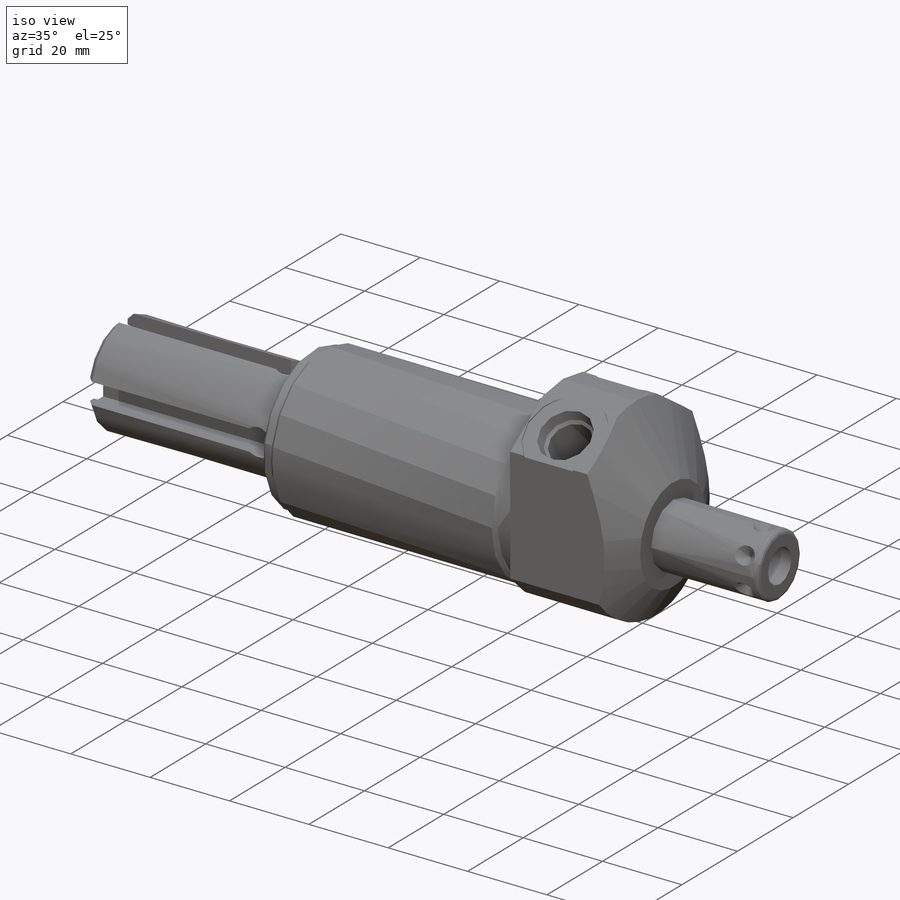
[diagram: iso view]
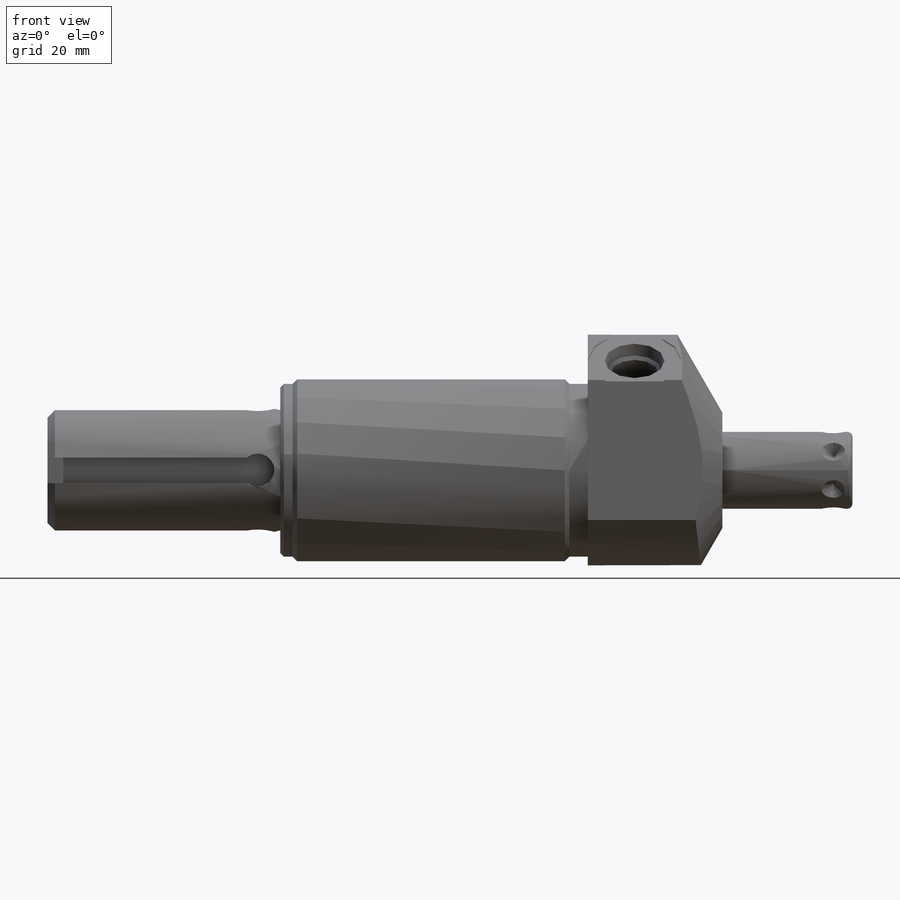
[diagram: front view]
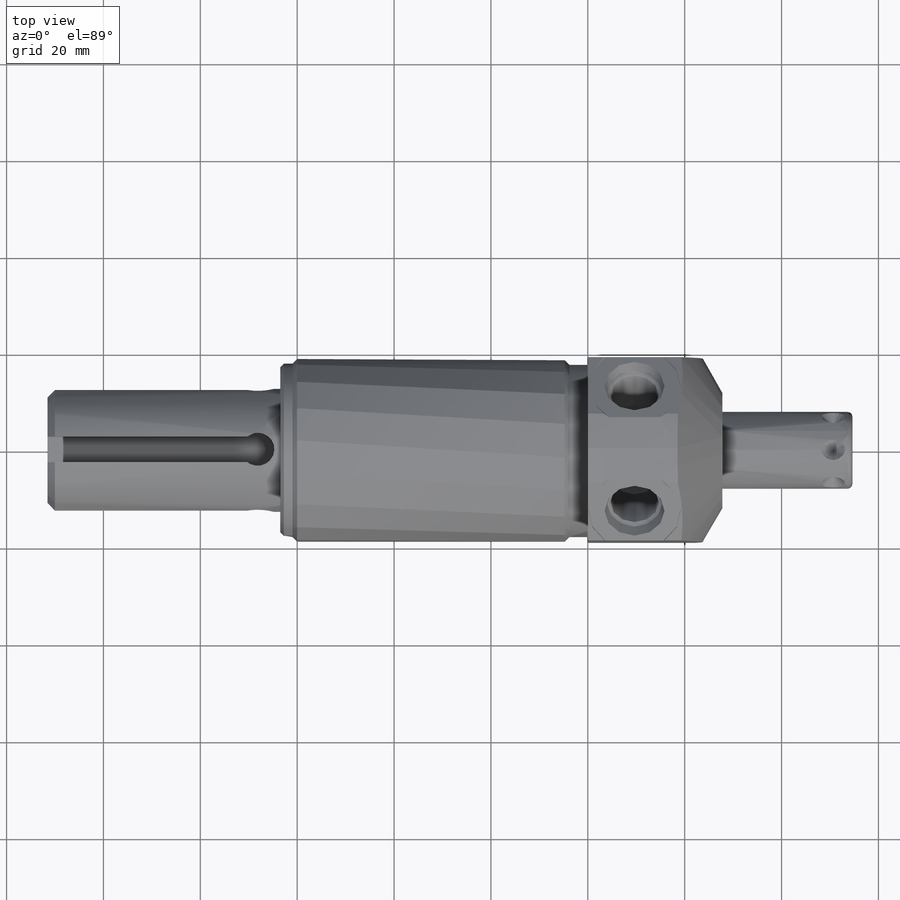
[diagram: top view]
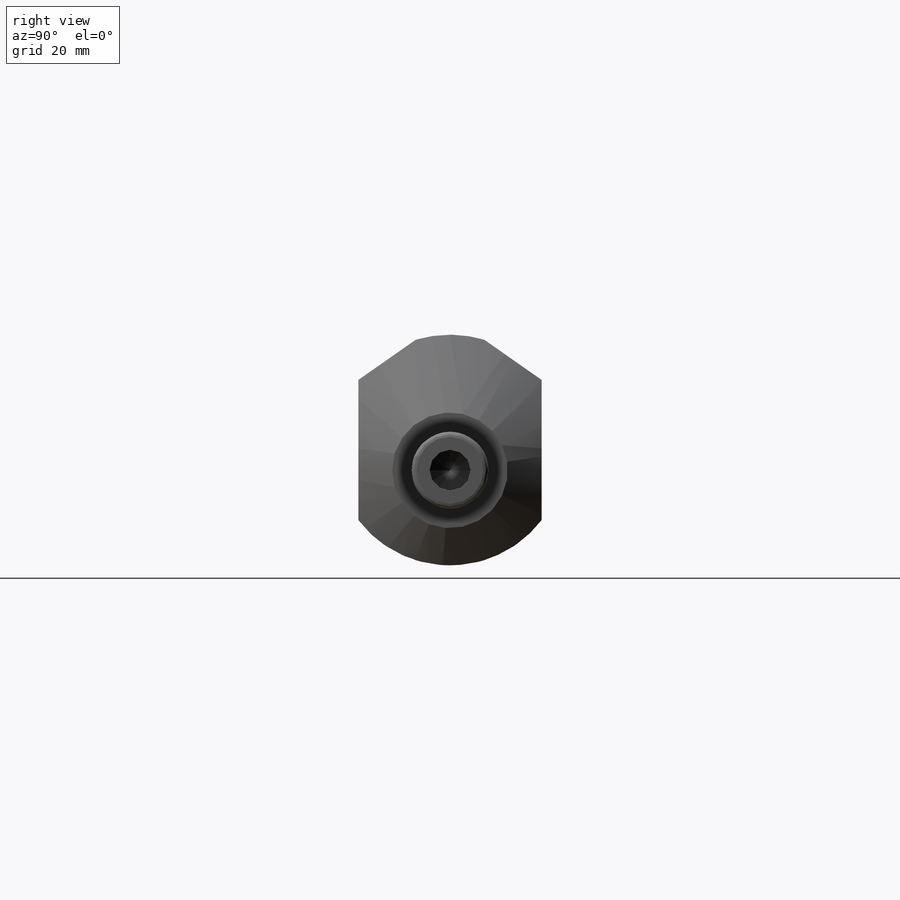
[diagram: right view]
SOLIDWORKS PART (.sldprt)
format: sldprt  version: not decoded by parser v0  size: 794,112 bytes
history: native  units: mm
features: sketch x18, plane x12, cut_extrude x8, cut_revolve x7, extrude x2, chamfer x2, pattern_circular x2, material x1, revolve x1 (+13 scaffold rows collapsed)
feature tree (66):
  scaffold x13  (default folders/planes/origin — collapsed)
  material  "Alloy Steel"
  plane  "Plane1"
  sketch  "Sketch1"  dims[D1=47.625mm]
  extrude  "Extrude1"  Depth=27.7876mm
  plane  "Plane2"
  sketch  "Sketch2"  dims[D2=37.719mm D1=4.191mm]
  cut_extrude  "Cut-Extrude1"  [1 undecoded]
  plane  "Plane4"
  sketch  "Sketch4"  dims[c1.D4=57.15mm c1.D1=37.846mm c1.D2=~27.715897mm c1.D3=18.923mm c2.D3=55.0deg]
  cut_extrude  "Cut-Extrude3"  [1 undecoded]
  plane  "Plane6"
  sketch  "Sketch6"  dims[c1.D1=23.876mm c1.D2=39.878mm c2.D2=30.0deg c2.D3=39.878mm]
  cut_revolve  "Cut-Revolve2"  Angle=360deg
  plane  "Plane7"
  sketch  "S2D0002"  dims[D1=13.462mm]
  cut_revolve  "Cut-Revolve3"  Angle=360deg
  plane  "Plane8"
  sketch  "Sketch8"  dims[D1=13.462mm]
  cut_revolve  "Cut-Revolve4"  Angle=360deg
  sketch  "Sketch18"  dims[D1=19.05mm]
  cut_extrude  "Cut-Extrude4"  Depth=0.254mm
  sketch  "Sketch19"  dims[D1=19.05mm]
  cut_extrude  "Cut-Extrude5"  Depth=0.254mm
  plane  "Plane10"
  sketch  "Sketch10"  dims[c1.D1=35.814mm c1.D2=3.81mm c1.D3=0.9525mm c2.D3=45.0deg]
  cut_revolve  "Cut-Revolve6"  Angle=360deg
  plane  "Plane12"
  sketch  "Sketch12"  dims[c1.D1=35.814mm c1.D2=2.54mm c1.D3=0.9525mm c2.D3=45.0deg]
  cut_revolve  "Cut-Revolve8"  Angle=360deg
  chamfer  "Chamfer1"  Distance=0.762mm Angle=45deg
  plane  "Plane13"
  sketch  "Sketch13"  dims[D2=1.016mm D1=54.6354mm D3=15.875mm]
  revolve  "Revolve1"  Angle=360deg
  plane  "Plane14"
  sketch  "S2D0001"  dims[c1.D1=8.4328mm c1.D2=15.24mm c1.D3=4.2164mm c2.D3=59.0deg]
  cut_revolve  "Cut-Revolve9"  Angle=360deg
  plane  "Plane16"
  plane  "Plane17"
  sketch  "Sketch16"  dims[c1.D1=3.9624mm c1.D2=4.826mm c1.D3=2.413mm c2.D3=45.0deg]
  cut_revolve  "Cut-Revolve10"  Angle=360deg
  pattern_circular  "CirPattern1"  Count=6 Angle=360deg
  sketch  "Sketch20"  dims[D1=25.4mm]
  extrude  "Extrude2"  Depth=48.0314mm
  chamfer  "Chamfer2"  Distance=1.524mm Angle=45deg
  sketch  "Sketch21"  dims[D1=32.258mm]
  cut_extrude  "Cut-Extrude6"  Depth=0.127mm
  sketch  "Sketch22"  dims[D1=31.75mm]
  cut_extrude  "Cut-Extrude7"  Depth=1.397mm
  sketch  "Sketch23"  dims[c1.D3=25.4mm c1.D4=25.4mm c1.D1=5.2832mm c1.D2=6.858mm c2.D3=6.4897mm c2.D4=3.302mm c2.D1=5.2832mm c2.D2=6.858mm c3.D3=3.302mm c3.D4=6.4897mm]
  cut_extrude  "Cut-Extrude8"  Depth=4.7752mm
  sketch  "Sketch24"  dims[D1=6.858mm D2=4.6482mm]
  cut_extrude  "Cut-Extrude9"  [1 undecoded]
  pattern_circular  "CirPattern2"  Count=4 Angle=360deg
decode coverage: 37 of 40 modeling features carry decoded parameters
note: ~ marks probable driven/reference dimensions
note: 3 parameter values undecoded
summary: no parameter record found for 3 features
note: suppression state not decoded; provenance and decode notes live in map.json
